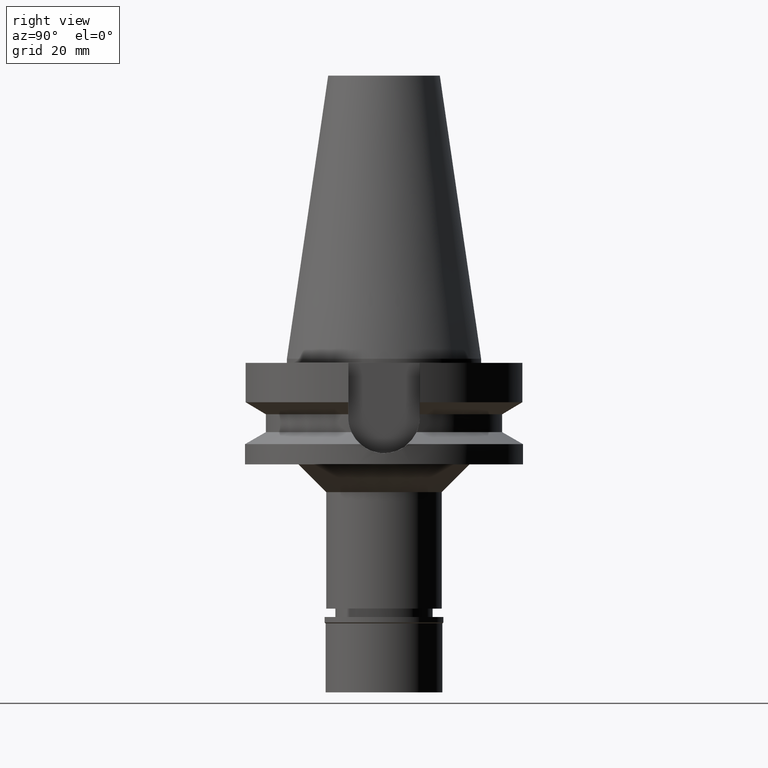
[diagram: clean part render]
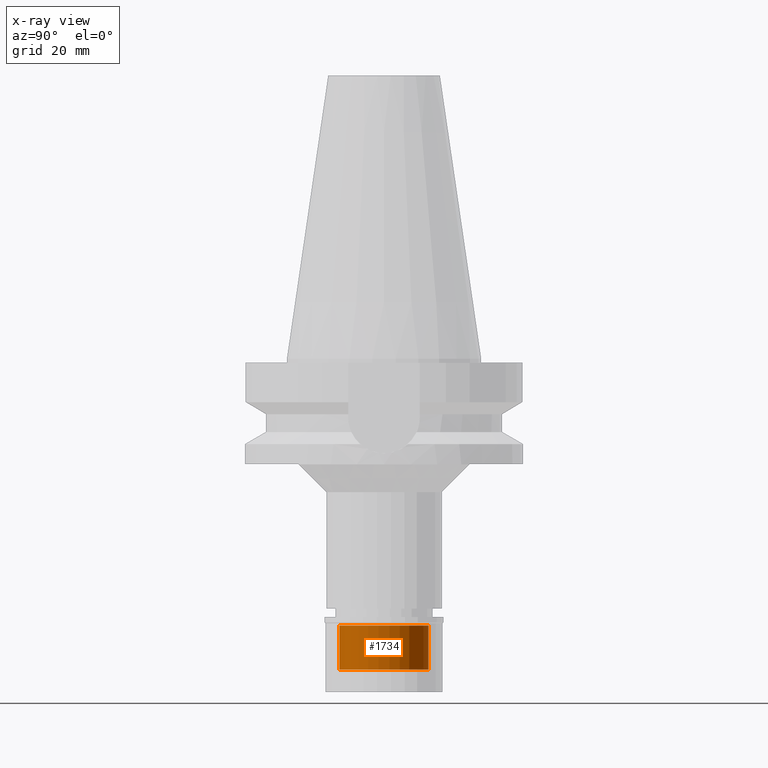
[diagram: x-ray — body ghosted, one internal face saturated and labeled with its STEP entity id]
A machine part, right view, then the same camera in x-ray: the body is ghosted and one INTERNAL B-rep face — a face not visible from any outside direction — is saturated and labeled: STEP entity #1734.
In plain terms, the highlighted cylindrical surface (partial cylindrical patch) has radius 16 mm, axis along (0, 0, -1).
Its self-contained STEP definition (entity closure, byte-faithful):
#56 = VERTEX_POINT ( 'NONE', #381 ) ;
#112 = ORIENTED_EDGE ( 'NONE', *, *, #1839, .F. ) ;
#275 = AXIS2_PLACEMENT_3D ( 'NONE', #1643, #2131, #379 ) ;
#379 = DIRECTION ( 'NONE',  ( 0.0000000000000000000, -1.000000000000000000, 0.0000000000000000000 ) ) ;
#381 = CARTESIAN_POINT ( 'NONE',  ( 0.0000000000000000000, 16.00000000000000000, -3.100000000000000089 ) ) ;
#480 = DIRECTION ( 'NONE',  ( 0.0000000000000000000, -1.000000000000000000, 0.0000000000000000000 ) ) ;
#644 = DIRECTION ( 'NONE',  ( 0.0000000000000000000, 0.0000000000000000000, -1.000000000000000000 ) ) ;
#653 = ORIENTED_EDGE ( 'NONE', *, *, #3025, .T. ) ;
#676 = LINE ( 'NONE', #1678, #2899 ) ;
#768 = CARTESIAN_POINT ( 'NONE',  ( 0.0000000000000000000, 16.00000000000000000, -18.89999999999999858 ) ) ;
#872 = VERTEX_POINT ( 'NONE', #3130 ) ;
#965 = ORIENTED_EDGE ( 'NONE', *, *, #1365, .T. ) ;
#1137 = CARTESIAN_POINT ( 'NONE',  ( 0.0000000000000000000, 0.0000000000000000000, -18.89999999999999858 ) ) ;
#1165 = EDGE_CURVE ( 'NONE', #2721, #872, #1948, .T. ) ;
#1365 = EDGE_CURVE ( 'NONE', #872, #2328, #676, .T. ) ;
#1621 = DIRECTION ( 'NONE',  ( 0.0000000000000000000, 1.000000000000000000, 0.0000000000000000000 ) ) ;
#1643 = CARTESIAN_POINT ( 'NONE',  ( 0.0000000000000000000, 0.0000000000000000000, 0.0000000000000000000 ) ) ;
#1678 = CARTESIAN_POINT ( 'NONE',  ( 0.0000000000000000000, -16.00000000000000000, -18.89999999999999858 ) ) ;
#1734 = ADVANCED_FACE ( 'NONE', ( #3098 ), #2826, .F. ) ;
#1738 = EDGE_LOOP ( 'NONE', ( #3089, #965, #653, #112 ) ) ;
#1839 = EDGE_CURVE ( 'NONE', #2721, #56, #2310, .T. ) ;
#1849 = DIRECTION ( 'NONE',  ( 0.0000000000000000000, 0.0000000000000000000, 1.000000000000000000 ) ) ;
#1948 = CIRCLE ( 'NONE', #2505, 16.00000000000000000 ) ;
#1999 = VECTOR ( 'NONE', #1849, 1000.000000000000000 ) ;
#2012 = CIRCLE ( 'NONE', #2804, 16.00000000000000000 ) ;
#2131 = DIRECTION ( 'NONE',  ( 0.0000000000000000000, 0.0000000000000000000, -1.000000000000000000 ) ) ;
#2310 = LINE ( 'NONE', #2997, #1999 ) ;
#2328 = VERTEX_POINT ( 'NONE', #2441 ) ;
#2374 = DIRECTION ( 'NONE',  ( 0.0000000000000000000, 0.0000000000000000000, 1.000000000000000000 ) ) ;
#2416 = CARTESIAN_POINT ( 'NONE',  ( 0.0000000000000000000, 0.0000000000000000000, -3.100000000000000089 ) ) ;
#2441 = CARTESIAN_POINT ( 'NONE',  ( 0.0000000000000000000, -16.00000000000000000, -3.100000000000000089 ) ) ;
#2505 = AXIS2_PLACEMENT_3D ( 'NONE', #1137, #644, #1621 ) ;
#2721 = VERTEX_POINT ( 'NONE', #768 ) ;
#2804 = AXIS2_PLACEMENT_3D ( 'NONE', #2416, #2874, #480 ) ;
#2826 = CYLINDRICAL_SURFACE ( 'NONE', #275, 16.00000000000000000 ) ;
#2874 = DIRECTION ( 'NONE',  ( 0.0000000000000000000, 0.0000000000000000000, 1.000000000000000000 ) ) ;
#2899 = VECTOR ( 'NONE', #2374, 1000.000000000000000 ) ;
#2997 = CARTESIAN_POINT ( 'NONE',  ( 0.0000000000000000000, 16.00000000000000000, -18.89999999999999858 ) ) ;
#3025 = EDGE_CURVE ( 'NONE', #2328, #56, #2012, .T. ) ;
#3089 = ORIENTED_EDGE ( 'NONE', *, *, #1165, .T. ) ;
#3098 = FACE_OUTER_BOUND ( 'NONE', #1738, .T. ) ;
#3130 = CARTESIAN_POINT ( 'NONE',  ( 0.0000000000000000000, -16.00000000000000000, -18.89999999999999858 ) ) ;